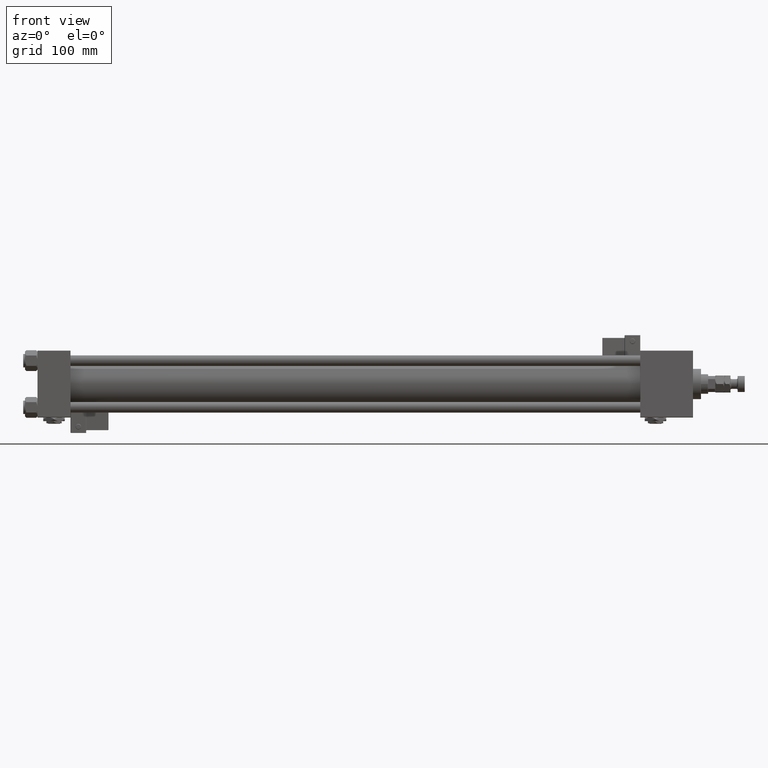
[diagram: clean part render]
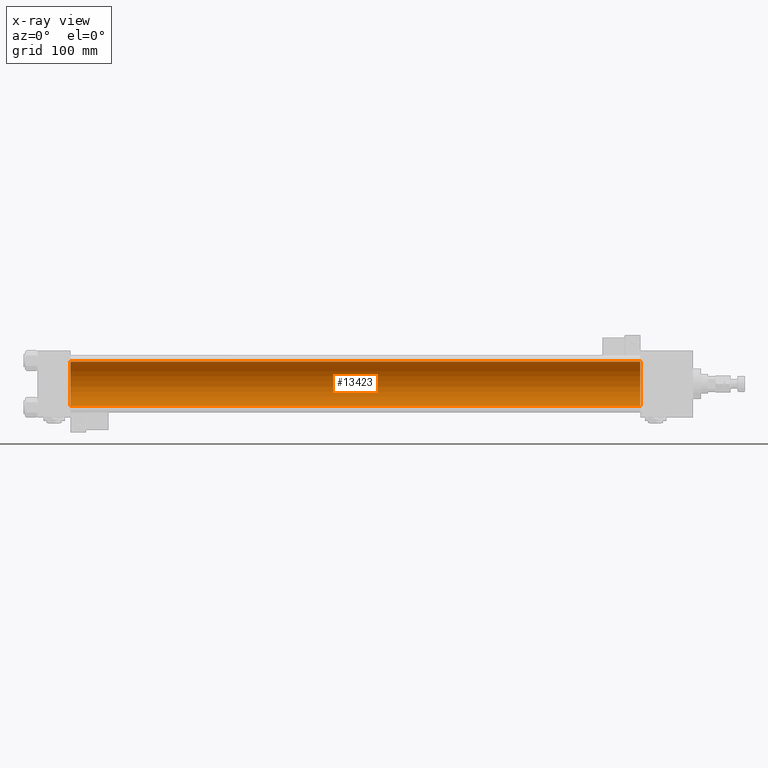
[diagram: x-ray — body ghosted, one internal face saturated and labeled with its STEP entity id]
A machine part, front view, then the same camera in x-ray: the body is ghosted and one INTERNAL B-rep face — a face not visible from any outside direction — is saturated and labeled: STEP entity #13423.
In plain terms, the highlighted cylindrical surface (edge-blend (fillet) strip) has radius 25 mm, axis along (-1, -0, -0).
Its self-contained STEP definition (entity closure, byte-faithful):
#1305 = ORIENTED_EDGE ( 'NONE', *, *, #29156, .T. ) ;
#1497 = CIRCLE ( 'NONE', #5162, 25.00000000000000000 ) ;
#1597 = DIRECTION ( 'NONE',  ( 1.000000000000000000, 0.000000000000000000, 0.000000000000000000 ) ) ;
#3842 = DIRECTION ( 'NONE',  ( -1.000000000000000000, -0.000000000000000000, -0.000000000000000000 ) ) ;
#4210 = DIRECTION ( 'NONE',  ( 1.000000000000000000, 0.000000000000000000, 0.000000000000000000 ) ) ;
#5162 = AXIS2_PLACEMENT_3D ( 'NONE', #47732, #4210, #44029 ) ;
#7883 = AXIS2_PLACEMENT_3D ( 'NONE', #31791, #1597, #45134 ) ;
#8161 = CARTESIAN_POINT ( 'NONE',  ( 675.0000000000000000, 4.595317839031724996E-16, -25.00000000000000000 ) ) ;
#8996 = LINE ( 'NONE', #8161, #56114 ) ;
#11729 = LINE ( 'NONE', #15997, #38188 ) ;
#12006 = DIRECTION ( 'NONE',  ( -1.000000000000000000, -0.000000000000000000, -0.000000000000000000 ) ) ;
#13418 = CARTESIAN_POINT ( 'NONE',  ( 37.00000000000000000, 4.595317839031724996E-16, -25.00000000000000000 ) ) ;
#13423 = ADVANCED_FACE ( 'NONE', ( #24635 ), #42265, .F. ) ;
#15997 = CARTESIAN_POINT ( 'NONE',  ( 675.0000000000000000, -2.602085213965210642E-15, 25.00000000000000000 ) ) ;
#17338 = EDGE_CURVE ( 'NONE', #28737, #26042, #1497, .T. ) ;
#20983 = DIRECTION ( 'NONE',  ( -1.000000000000000000, -0.000000000000000000, -0.000000000000000000 ) ) ;
#21816 = EDGE_CURVE ( 'NONE', #42580, #25162, #43327, .T. ) ;
#24141 = EDGE_CURVE ( 'NONE', #28737, #42580, #8996, .T. ) ;
#24635 = FACE_OUTER_BOUND ( 'NONE', #51968, .T. ) ;
#25162 = VERTEX_POINT ( 'NONE', #31406 ) ;
#26042 = VERTEX_POINT ( 'NONE', #26898 ) ;
#26898 = CARTESIAN_POINT ( 'NONE',  ( 675.0000000000000000, -2.602085213965210642E-15, 25.00000000000000000 ) ) ;
#28657 = ORIENTED_EDGE ( 'NONE', *, *, #24141, .F. ) ;
#28737 = VERTEX_POINT ( 'NONE', #54498 ) ;
#29156 = EDGE_CURVE ( 'NONE', #26042, #25162, #11729, .T. ) ;
#31406 = CARTESIAN_POINT ( 'NONE',  ( 37.00000000000000000, -2.602085213965210642E-15, 25.00000000000000000 ) ) ;
#31791 = CARTESIAN_POINT ( 'NONE',  ( 37.00000000000000000, -2.602085213965210642E-15, 0.000000000000000000 ) ) ;
#34022 = CARTESIAN_POINT ( 'NONE',  ( 675.0000000000000000, -2.602085213965210642E-15, 0.000000000000000000 ) ) ;
#34988 = AXIS2_PLACEMENT_3D ( 'NONE', #34022, #3842, #46814 ) ;
#36912 = ORIENTED_EDGE ( 'NONE', *, *, #17338, .T. ) ;
#38188 = VECTOR ( 'NONE', #12006, 1000.000000000000000 ) ;
#42265 = CYLINDRICAL_SURFACE ( 'NONE', #34988, 25.00000000000000000 ) ;
#42580 = VERTEX_POINT ( 'NONE', #13418 ) ;
#43009 = ORIENTED_EDGE ( 'NONE', *, *, #21816, .F. ) ;
#43327 = CIRCLE ( 'NONE', #7883, 25.00000000000000000 ) ;
#44029 = DIRECTION ( 'NONE',  ( 0.000000000000000000, 0.000000000000000000, -1.000000000000000000 ) ) ;
#45134 = DIRECTION ( 'NONE',  ( 0.000000000000000000, 0.000000000000000000, -1.000000000000000000 ) ) ;
#46814 = DIRECTION ( 'NONE',  ( 0.000000000000000000, 0.000000000000000000, 1.000000000000000000 ) ) ;
#47732 = CARTESIAN_POINT ( 'NONE',  ( 675.0000000000000000, -2.602085213965210642E-15, 0.000000000000000000 ) ) ;
#51968 = EDGE_LOOP ( 'NONE', ( #28657, #36912, #1305, #43009 ) ) ;
#54498 = CARTESIAN_POINT ( 'NONE',  ( 675.0000000000000000, 4.595317839031724996E-16, -25.00000000000000000 ) ) ;
#56114 = VECTOR ( 'NONE', #20983, 1000.000000000000000 ) ;